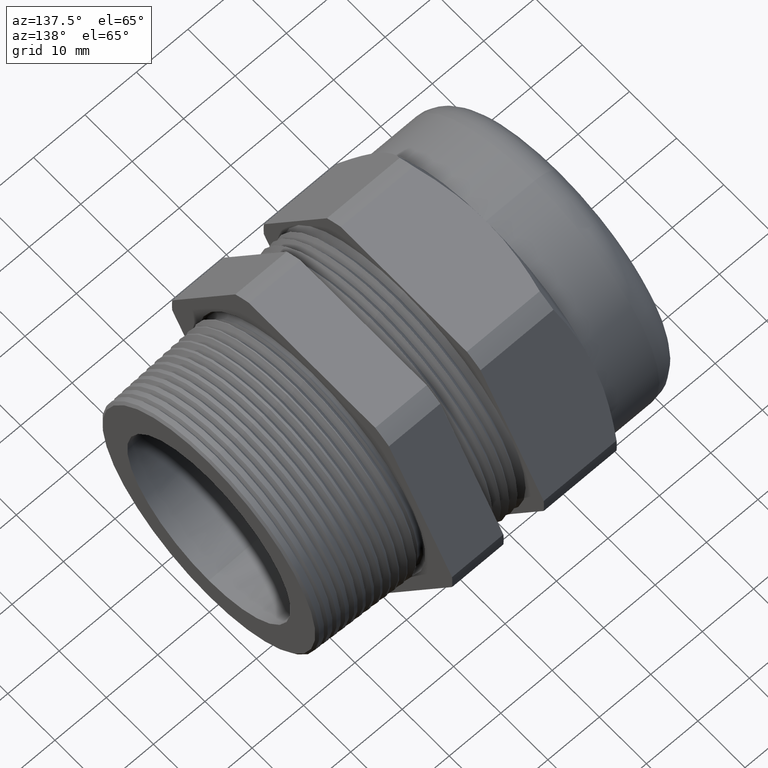
[diagram: clean part render]
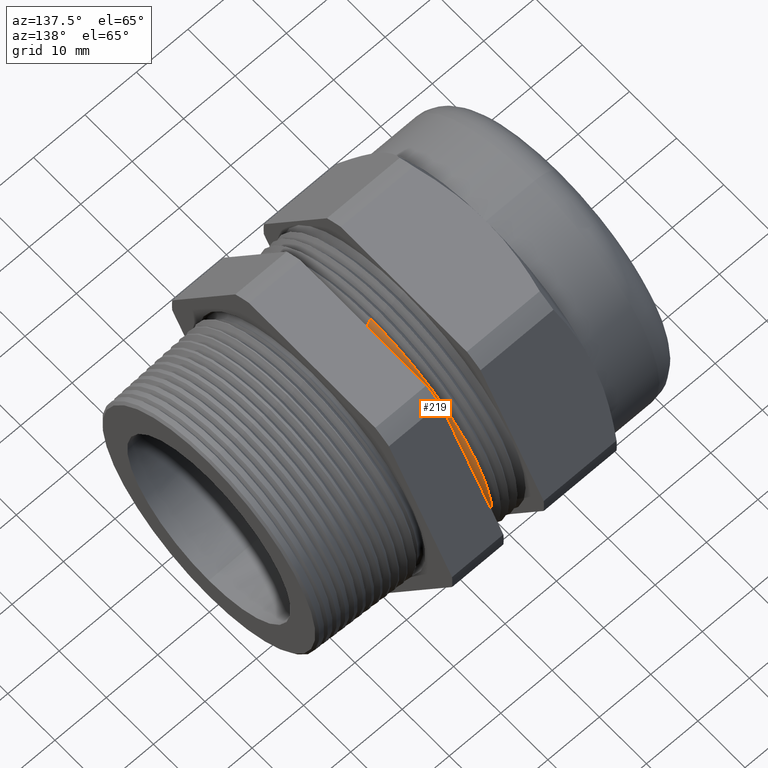
[diagram: same view with one face highlighted and labeled with its STEP entity id]
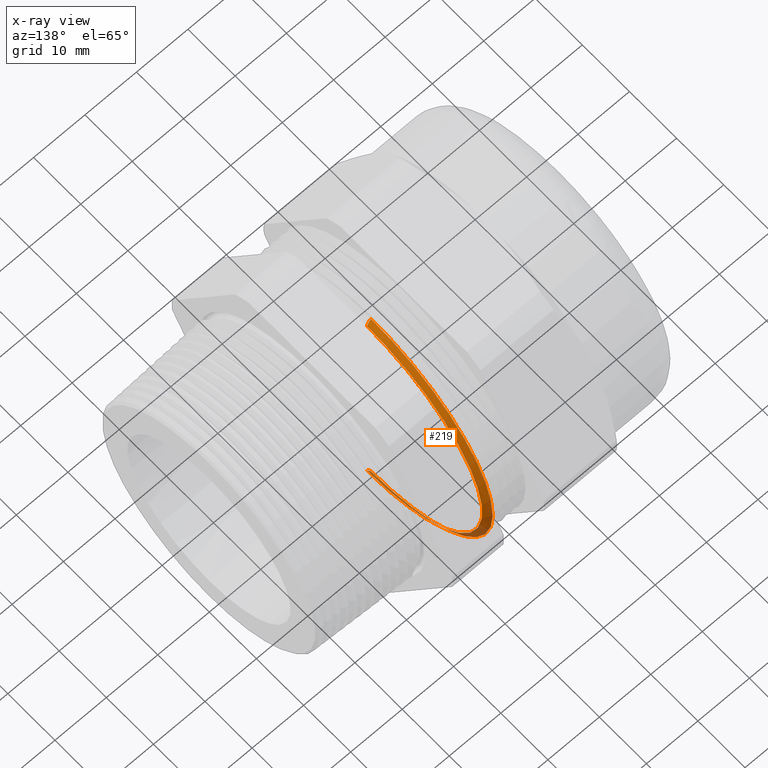
[diagram: x-ray of the same camera — body ghosted, the highlighted face saturated]
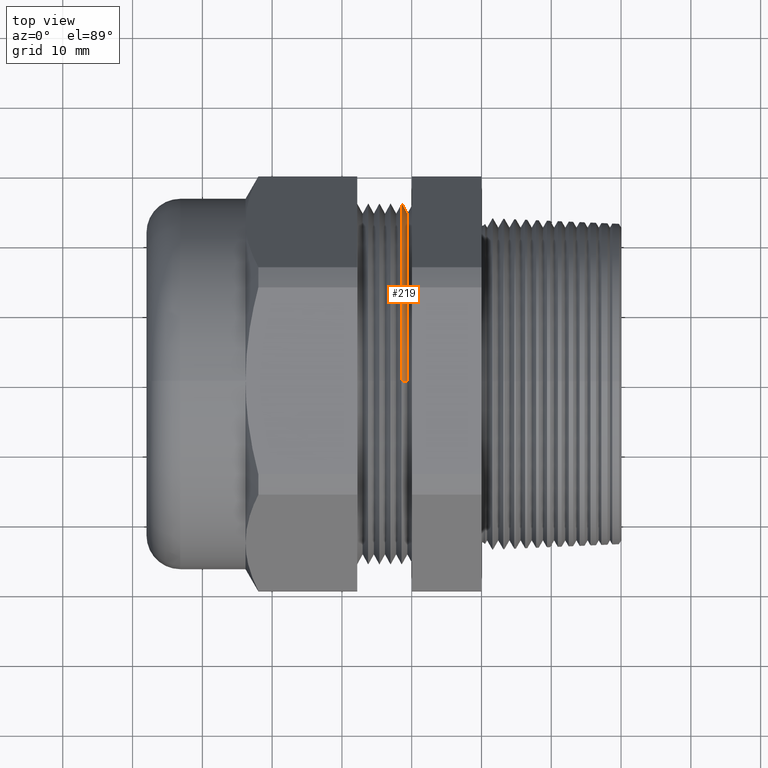
[diagram: same view with one face highlighted and labeled with its STEP entity id]
A machine part, auxiliary view. The second image highlights one B-rep face of the part: STEP entity #219.
The next image is the same camera in x-ray: the body ghosted, the highlighted face saturated — about 14% of this face is hidden behind the body in this view.
A second angle (top view) of the same face is appended — the face is thin or edge-on in the first view.
In plain terms, the highlighted conical surface has half-angle 60 deg.
Its self-contained STEP definition (entity closure, byte-faithful):
#216 = VERTEX_POINT ( 'NONE', #1573 ) ;
#218 = ORIENTED_EDGE ( 'NONE', *, *, #229, .T. ) ;
#219 = ADVANCED_FACE ( 'NONE', ( #1572 ), #1570, .T. ) ;
#223 = EDGE_LOOP ( 'NONE', ( #234, #218, #224, #278 ) ) ;
#224 = ORIENTED_EDGE ( 'NONE', *, *, #227, .T. ) ;
#227 = EDGE_CURVE ( 'NONE', #216, #258, #1617, .T. ) ;
#229 = EDGE_CURVE ( 'NONE', #244, #216, #1608, .T. ) ;
#231 = EDGE_CURVE ( 'NONE', #244, #233, #1604, .T. ) ;
#233 = VERTEX_POINT ( 'NONE', #1594 ) ;
#234 = ORIENTED_EDGE ( 'NONE', *, *, #231, .F. ) ;
#244 = VERTEX_POINT ( 'NONE', #1643 ) ;
#258 = VERTEX_POINT ( 'NONE', #1682 ) ;
#278 = ORIENTED_EDGE ( 'NONE', *, *, #334, .F. ) ;
#334 = EDGE_CURVE ( 'NONE', #233, #258, #1756, .T. ) ;
#1567 = DIRECTION ( 'NONE',  ( 0.0000000000000000000, 0.0000000000000000000, 1.000000000000000000 ) ) ;
#1568 = DIRECTION ( 'NONE',  ( -1.000000000000000000, 0.0000000000000000000, 0.0000000000000000000 ) ) ;
#1569 = AXIS2_PLACEMENT_3D ( 'NONE', #1571, #1568, #1567 ) ;
#1570 = CONICAL_SURFACE ( 'NONE', #1569, 1.017600000000000100, 1.047197551196606100 ) ;
#1571 = CARTESIAN_POINT ( 'NONE',  ( -0.4492500000000000400, 0.0000000000000000000, 0.0000000000000000000 ) ) ;
#1572 = FACE_OUTER_BOUND ( 'NONE', #223, .T. ) ;
#1573 = CARTESIAN_POINT ( 'NONE',  ( -0.4492500000000000400, 1.246200582812346700E-016, -1.017600000000000100 ) ) ;
#1594 = CARTESIAN_POINT ( 'NONE',  ( -0.4182500144537540400, 1.213322765741167400E-016, 0.9639064500000000800 ) ) ;
#1600 = DIRECTION ( 'NONE',  ( 0.0000000000000000000, 0.0000000000000000000, -1.000000000000000000 ) ) ;
#1601 = DIRECTION ( 'NONE',  ( 1.000000000000000000, 0.0000000000000000000, 0.0000000000000000000 ) ) ;
#1602 = CARTESIAN_POINT ( 'NONE',  ( -0.4182500144537540400, 0.0000000000000000000, 0.0000000000000000000 ) ) ;
#1603 = AXIS2_PLACEMENT_3D ( 'NONE', #1602, #1601, #1600 ) ;
#1604 = CIRCLE ( 'NONE', #1603, 0.9639064500000000800 ) ;
#1605 = DIRECTION ( 'NONE',  ( -0.4999999999999927800, 1.060575238724911800E-016, -0.8660254037844427000 ) ) ;
#1606 = VECTOR ( 'NONE', #1605, 39.37007874015748100 ) ;
#1607 = CARTESIAN_POINT ( 'NONE',  ( -0.4492500000000000400, 1.246200582812346700E-016, -1.017600000000000100 ) ) ;
#1608 = LINE ( 'NONE', #1607, #1606 ) ;
#1613 = DIRECTION ( 'NONE',  ( 0.0000000000000000000, 0.0000000000000000000, -1.000000000000000000 ) ) ;
#1614 = DIRECTION ( 'NONE',  ( 1.000000000000000000, 0.0000000000000000000, 0.0000000000000000000 ) ) ;
#1615 = CARTESIAN_POINT ( 'NONE',  ( -0.4492500000000000400, 0.0000000000000000000, 0.0000000000000000000 ) ) ;
#1616 = AXIS2_PLACEMENT_3D ( 'NONE', #1615, #1614, #1613 ) ;
#1617 = CIRCLE ( 'NONE', #1616, 1.017600000000000100 ) ;
#1643 = CARTESIAN_POINT ( 'NONE',  ( -0.4182500144537540400, 0.0000000000000000000, -0.9639064500000000800 ) ) ;
#1682 = CARTESIAN_POINT ( 'NONE',  ( -0.4492500000000000400, 0.0000000000000000000, 1.017600000000000100 ) ) ;
#1753 = DIRECTION ( 'NONE',  ( -0.4999999999999927800, 0.0000000000000000000, 0.8660254037844427000 ) ) ;
#1754 = VECTOR ( 'NONE', #1753, 39.37007874015748100 ) ;
#1755 = CARTESIAN_POINT ( 'NONE',  ( -0.4492500000000000400, 0.0000000000000000000, 1.017600000000000100 ) ) ;
#1756 = LINE ( 'NONE', #1755, #1754 ) ;